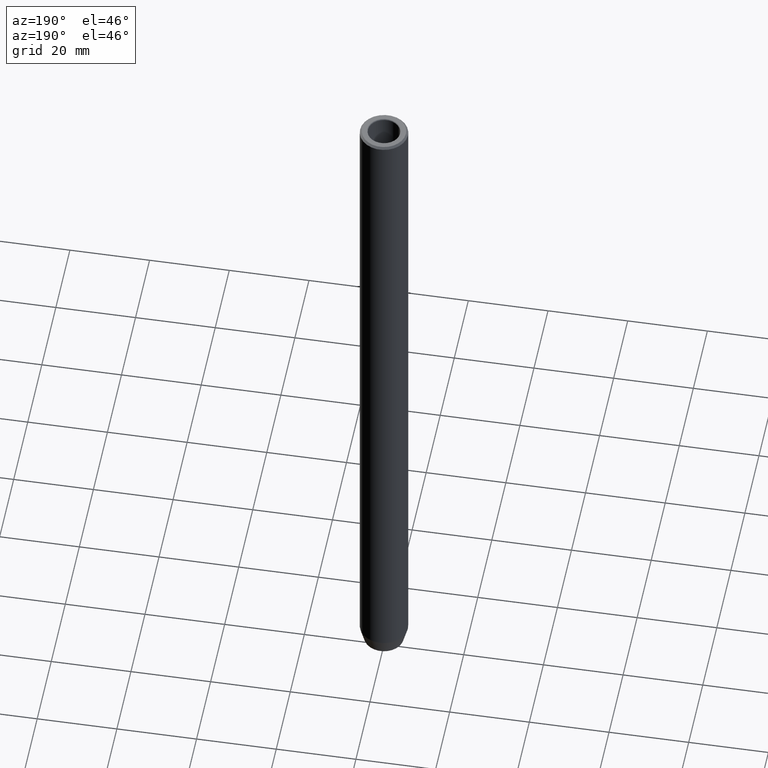
[diagram: clean part render]
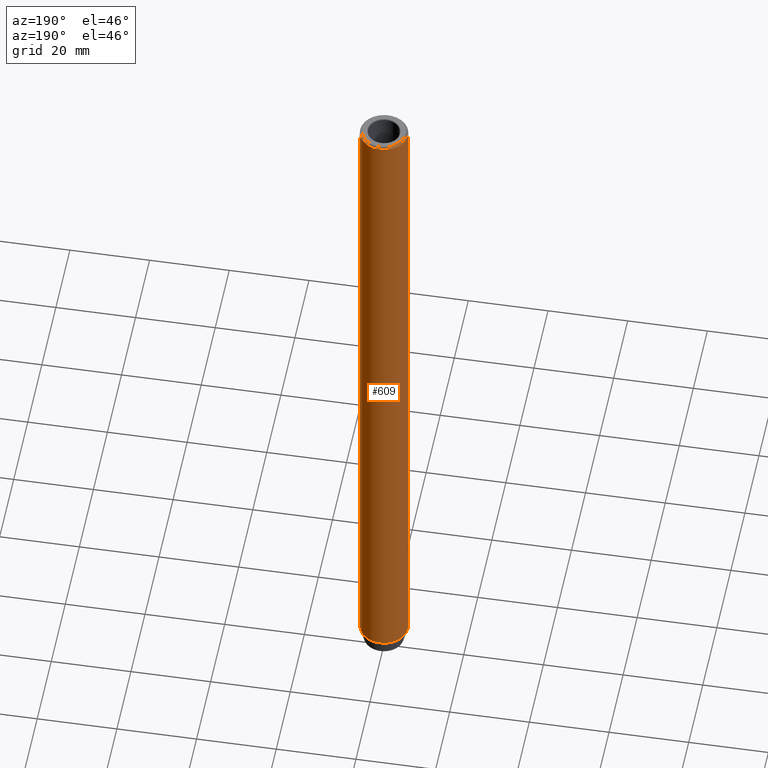
[diagram: same view with one face highlighted and labeled with its STEP entity id]
A machine part, auxiliary view. The second image highlights one B-rep face of the part: STEP entity #609.
In plain terms, the highlighted cylindrical surface (edge-blend (fillet) strip) has radius 6 mm, axis along (-0, -0, 1).
Its self-contained STEP definition (entity closure, byte-faithful):
#19 = ORIENTED_EDGE ( 'NONE', *, *, #315, .T. ) ;
#38 = DIRECTION ( 'NONE',  ( -0.000000000000000000, -0.000000000000000000, 1.000000000000000000 ) ) ;
#48 = VERTEX_POINT ( 'NONE', #298 ) ;
#57 = EDGE_LOOP ( 'NONE', ( #134, #19, #305, #440 ) ) ;
#90 = EDGE_CURVE ( 'NONE', #226, #48, #359, .T. ) ;
#95 = CARTESIAN_POINT ( 'NONE',  ( 6.000000000000000000, 0.000000000000000000, 0.000000000000000000 ) ) ;
#134 = ORIENTED_EDGE ( 'NONE', *, *, #90, .T. ) ;
#136 = VECTOR ( 'NONE', #38, 1000.000000000000000 ) ;
#169 = CARTESIAN_POINT ( 'NONE',  ( 0.000000000000000000, 0.000000000000000000, -176.0000000000000000 ) ) ;
#206 = CARTESIAN_POINT ( 'NONE',  ( 0.000000000000000000, 0.000000000000000000, -0.4999999999999891753 ) ) ;
#226 = VERTEX_POINT ( 'NONE', #501 ) ;
#267 = DIRECTION ( 'NONE',  ( -0.000000000000000000, -0.000000000000000000, 1.000000000000000000 ) ) ;
#292 = VECTOR ( 'NONE', #393, 1000.000000000000000 ) ;
#298 = CARTESIAN_POINT ( 'NONE',  ( -6.000000000000000000, 7.347880794884119736E-16, -176.0000000000000000 ) ) ;
#305 = ORIENTED_EDGE ( 'NONE', *, *, #547, .T. ) ;
#315 = EDGE_CURVE ( 'NONE', #48, #426, #345, .T. ) ;
#345 = LINE ( 'NONE', #396, #292 ) ;
#358 = DIRECTION ( 'NONE',  ( 1.000000000000000000, 0.000000000000000000, 0.000000000000000000 ) ) ;
#359 = CIRCLE ( 'NONE', #535, 6.000000000000000000 ) ;
#373 = EDGE_CURVE ( 'NONE', #226, #599, #626, .T. ) ;
#377 = DIRECTION ( 'NONE',  ( -0.000000000000000000, -0.000000000000000000, 1.000000000000000000 ) ) ;
#393 = DIRECTION ( 'NONE',  ( -0.000000000000000000, -0.000000000000000000, 1.000000000000000000 ) ) ;
#396 = CARTESIAN_POINT ( 'NONE',  ( -6.000000000000000000, 7.347880794884119736E-16, 0.000000000000000000 ) ) ;
#404 = DIRECTION ( 'NONE',  ( 0.000000000000000000, 0.000000000000000000, -1.000000000000000000 ) ) ;
#426 = VERTEX_POINT ( 'NONE', #509 ) ;
#440 = ORIENTED_EDGE ( 'NONE', *, *, #373, .F. ) ;
#477 = DIRECTION ( 'NONE',  ( 1.000000000000000000, 0.000000000000000000, 0.000000000000000000 ) ) ;
#501 = CARTESIAN_POINT ( 'NONE',  ( 6.000000000000000000, 0.000000000000000000, -176.0000000000000000 ) ) ;
#509 = CARTESIAN_POINT ( 'NONE',  ( -6.000000000000000000, 7.347880794884119736E-16, -0.4999999999999891753 ) ) ;
#511 = CIRCLE ( 'NONE', #602, 6.000000000000000000 ) ;
#513 = CYLINDRICAL_SURFACE ( 'NONE', #558, 6.000000000000000000 ) ;
#526 = CARTESIAN_POINT ( 'NONE',  ( 6.000000000000000000, 0.000000000000000000, -0.4999999999999891753 ) ) ;
#535 = AXIS2_PLACEMENT_3D ( 'NONE', #169, #267, #606 ) ;
#547 = EDGE_CURVE ( 'NONE', #426, #599, #511, .T. ) ;
#558 = AXIS2_PLACEMENT_3D ( 'NONE', #566, #377, #477 ) ;
#566 = CARTESIAN_POINT ( 'NONE',  ( 0.000000000000000000, 0.000000000000000000, 0.000000000000000000 ) ) ;
#599 = VERTEX_POINT ( 'NONE', #526 ) ;
#602 = AXIS2_PLACEMENT_3D ( 'NONE', #206, #404, #358 ) ;
#606 = DIRECTION ( 'NONE',  ( 1.000000000000000000, 0.000000000000000000, 0.000000000000000000 ) ) ;
#609 = ADVANCED_FACE ( 'NONE', ( #616 ), #513, .T. ) ;
#616 = FACE_OUTER_BOUND ( 'NONE', #57, .T. ) ;
#626 = LINE ( 'NONE', #95, #136 ) ;